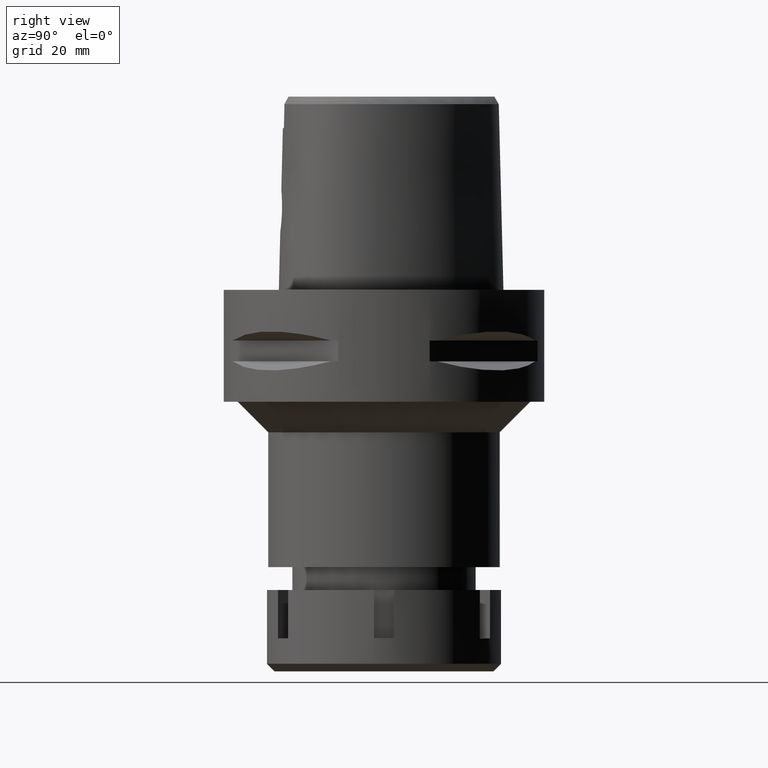
[diagram: clean part render]
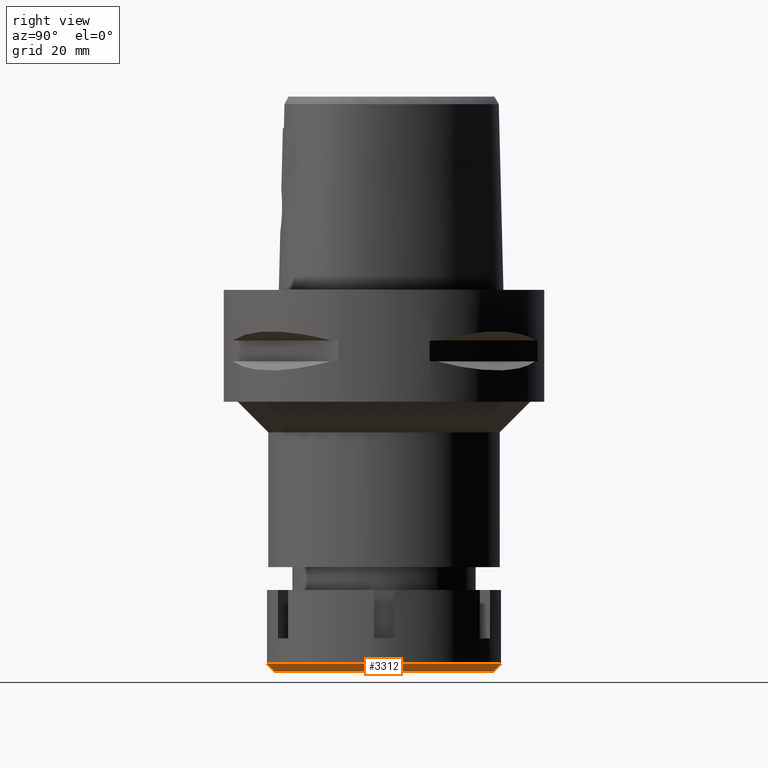
[diagram: same view with one face highlighted and labeled with its STEP entity id]
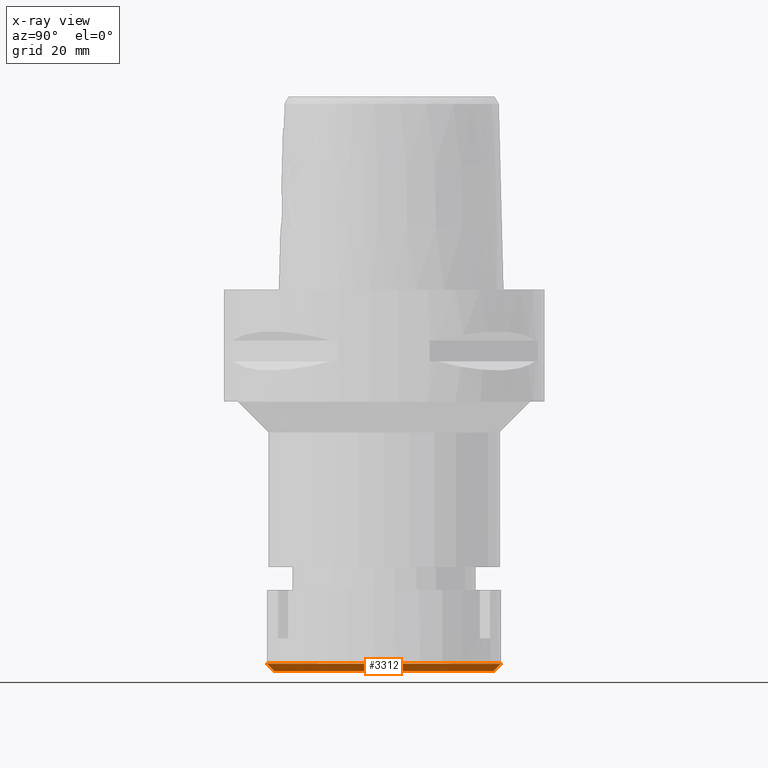
[diagram: x-ray of the same camera — body ghosted, the highlighted face saturated]
A machine part, right view. The second image highlights one B-rep face of the part: STEP entity #3312.
The next image is the same camera in x-ray: the body ghosted, the highlighted face saturated — about 0% of this face is hidden behind the body in this view.
In plain terms, the highlighted conical surface has half-angle 45 deg.
Its self-contained STEP definition (entity closure, byte-faithful):
#344 = FACE_OUTER_BOUND ( 'NONE', #1463, .T. ) ;
#398 = VECTOR ( 'NONE', #2303, 1000.000000000000114 ) ;
#417 = VECTOR ( 'NONE', #722, 1000.000000000000114 ) ;
#722 = DIRECTION ( 'NONE',  ( 0.0000000000000000000, -0.7071067811865474617, -0.7071067811865474617 ) ) ;
#751 = AXIS2_PLACEMENT_3D ( 'NONE', #874, #2058, #790 ) ;
#790 = DIRECTION ( 'NONE',  ( 0.0000000000000000000, -1.000000000000000000, 0.0000000000000000000 ) ) ;
#800 = CARTESIAN_POINT ( 'NONE',  ( 0.0000000000000000000, 23.00000000000000000, -14.50000000000000000 ) ) ;
#858 = ORIENTED_EDGE ( 'NONE', *, *, #2912, .F. ) ;
#874 = CARTESIAN_POINT ( 'NONE',  ( 0.0000000000000000000, 0.0000000000000000000, -16.00000000000000000 ) ) ;
#875 = VERTEX_POINT ( 'NONE', #4438 ) ;
#919 = CARTESIAN_POINT ( 'NONE',  ( 0.0000000000000000000, 23.00000000000000000, -14.50000000000000000 ) ) ;
#1350 = DIRECTION ( 'NONE',  ( 0.0000000000000000000, 0.0000000000000000000, 1.000000000000000000 ) ) ;
#1364 = CONICAL_SURFACE ( 'NONE', #3314, 22.25000000000000000, 0.7853981633972997312 ) ;
#1463 = EDGE_LOOP ( 'NONE', ( #858, #4871, #3939, #5134 ) ) ;
#1620 = DIRECTION ( 'NONE',  ( 0.0000000000000000000, 1.000000000000000000, 0.0000000000000000000 ) ) ;
#2031 = EDGE_CURVE ( 'NONE', #3340, #4412, #5380, .T. ) ;
#2032 = CARTESIAN_POINT ( 'NONE',  ( 0.0000000000000000000, 0.0000000000000000000, -15.25000000000000000 ) ) ;
#2058 = DIRECTION ( 'NONE',  ( 0.0000000000000000000, 0.0000000000000000000, 1.000000000000000000 ) ) ;
#2271 = VERTEX_POINT ( 'NONE', #4770 ) ;
#2303 = DIRECTION ( 'NONE',  ( 0.0000000000000000000, 0.7071067811865474617, -0.7071067811865474617 ) ) ;
#2527 = LINE ( 'NONE', #3795, #398 ) ;
#2631 = CARTESIAN_POINT ( 'NONE',  ( 0.0000000000000000000, 0.0000000000000000000, -14.50000000000000000 ) ) ;
#2912 = EDGE_CURVE ( 'NONE', #2271, #3340, #4998, .T. ) ;
#3312 = ADVANCED_FACE ( 'NONE', ( #344 ), #1364, .T. ) ;
#3314 = AXIS2_PLACEMENT_3D ( 'NONE', #2032, #3721, #1620 ) ;
#3340 = VERTEX_POINT ( 'NONE', #919 ) ;
#3487 = CIRCLE ( 'NONE', #751, 21.50000000000000000 ) ;
#3721 = DIRECTION ( 'NONE',  ( 0.0000000000000000000, 0.0000000000000000000, 1.000000000000000000 ) ) ;
#3795 = CARTESIAN_POINT ( 'NONE',  ( 0.0000000000000000000, -23.00000000000000000, -14.50000000000000000 ) ) ;
#3939 = ORIENTED_EDGE ( 'NONE', *, *, #5221, .T. ) ;
#3946 = EDGE_CURVE ( 'NONE', #2271, #875, #2527, .T. ) ;
#3954 = CARTESIAN_POINT ( 'NONE',  ( 0.0000000000000000000, 21.50000000000000000, -16.00000000000000000 ) ) ;
#4300 = AXIS2_PLACEMENT_3D ( 'NONE', #2631, #1350, #4305 ) ;
#4305 = DIRECTION ( 'NONE',  ( 0.0000000000000000000, -1.000000000000000000, 0.0000000000000000000 ) ) ;
#4412 = VERTEX_POINT ( 'NONE', #3954 ) ;
#4438 = CARTESIAN_POINT ( 'NONE',  ( 0.0000000000000000000, -21.50000000000000000, -16.00000000000000000 ) ) ;
#4770 = CARTESIAN_POINT ( 'NONE',  ( 0.0000000000000000000, -23.00000000000000000, -14.50000000000000000 ) ) ;
#4871 = ORIENTED_EDGE ( 'NONE', *, *, #3946, .T. ) ;
#4998 = CIRCLE ( 'NONE', #4300, 23.00000000000000000 ) ;
#5134 = ORIENTED_EDGE ( 'NONE', *, *, #2031, .F. ) ;
#5221 = EDGE_CURVE ( 'NONE', #875, #4412, #3487, .T. ) ;
#5380 = LINE ( 'NONE', #800, #417 ) ;